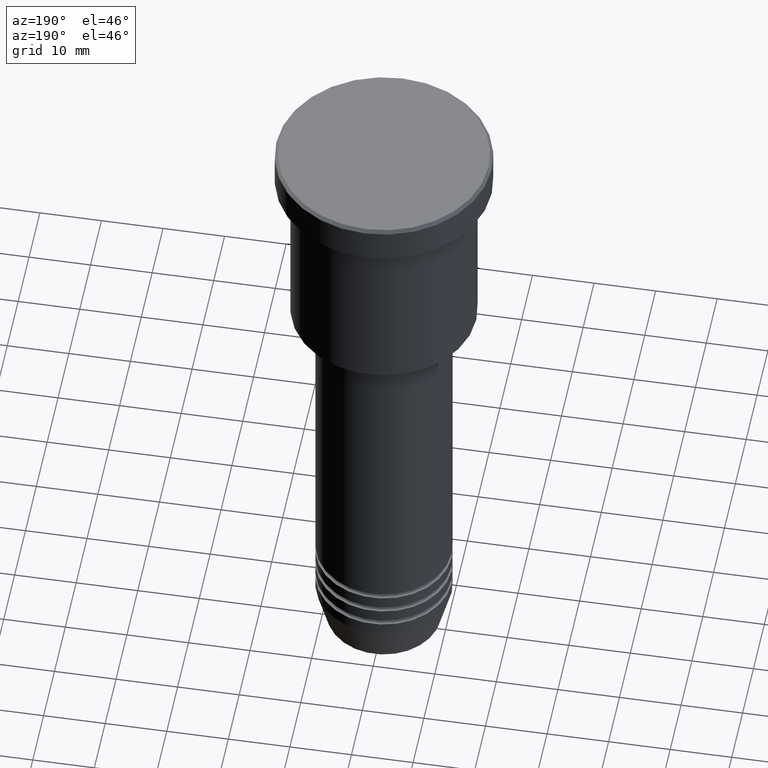
[diagram: clean part render]
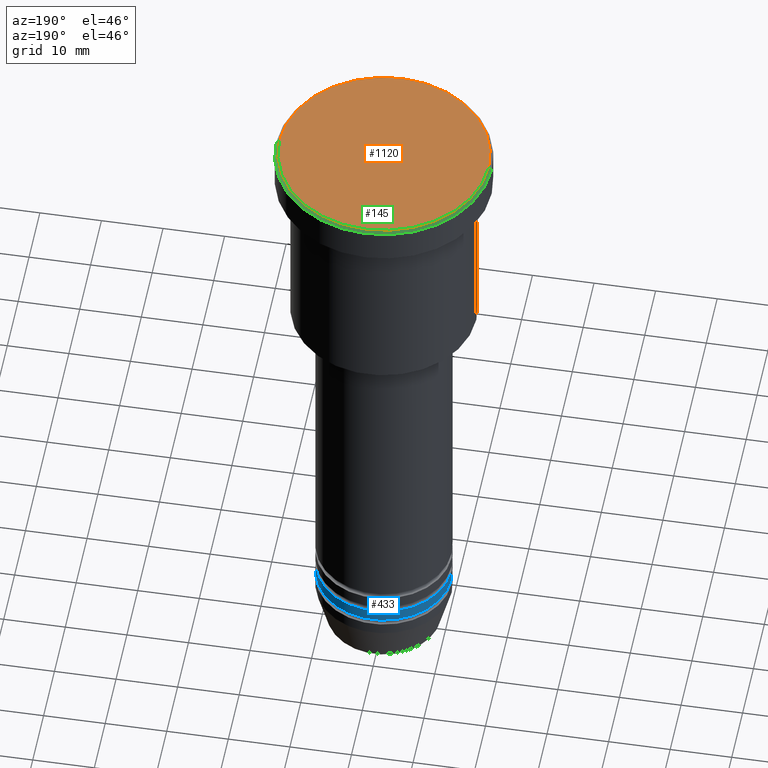
[diagram: same view with three faces highlighted in distinct colors, each labeled with its STEP entity id]
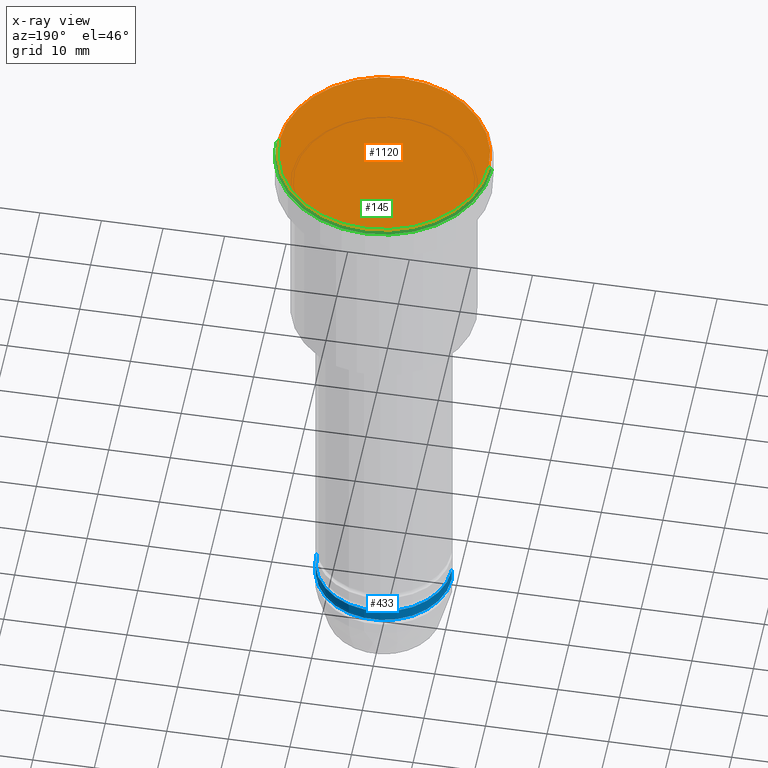
[diagram: x-ray of the same camera — body ghosted, the three highlighted faces saturated]
A machine part, auxiliary view with three faces highlighted in distinct colors.
The next image is the same camera in x-ray (body ghosted, the three faces saturated) — at least one of them is partly hidden behind the body in this view.
Their STEP definitions:

[orange] entity #1120 — the highlighted planar face has unit normal (0, -0, 1).
#15 = FACE_OUTER_BOUND ( 'NONE', #724, .T. ) ;
#146 = VERTEX_POINT ( 'NONE', #750 ) ;
#155 = DIRECTION ( 'NONE',  ( 0.000000000000000000, -0.000000000000000000, 1.000000000000000000 ) ) ;
#221 = DIRECTION ( 'NONE',  ( -0.000000000000000000, -0.000000000000000000, 1.000000000000000000 ) ) ;
#224 = DIRECTION ( 'NONE',  ( 1.000000000000000000, 0.000000000000000000, 0.000000000000000000 ) ) ;
#251 = CARTESIAN_POINT ( 'NONE',  ( 16.99999999999998579, 2.112515728529183278E-15, 0.000000000000000000 ) ) ;
#406 = PLANE ( 'NONE',  #876 ) ;
#441 = AXIS2_PLACEMENT_3D ( 'NONE', #1147, #681, #224 ) ;
#669 = DIRECTION ( 'NONE',  ( 1.000000000000000000, 0.000000000000000000, 0.000000000000000000 ) ) ;
#681 = DIRECTION ( 'NONE',  ( -0.000000000000000000, -0.000000000000000000, 1.000000000000000000 ) ) ;
#721 = EDGE_CURVE ( 'NONE', #882, #146, #966, .T. ) ;
#724 = EDGE_LOOP ( 'NONE', ( #867, #841 ) ) ;
#750 = CARTESIAN_POINT ( 'NONE',  ( -16.99999999999998579, 0.000000000000000000, 0.000000000000000000 ) ) ;
#776 = AXIS2_PLACEMENT_3D ( 'NONE', #781, #221, #958 ) ;
#781 = CARTESIAN_POINT ( 'NONE',  ( 0.000000000000000000, 0.000000000000000000, 0.000000000000000000 ) ) ;
#795 = CIRCLE ( 'NONE', #776, 16.99999999999998579 ) ;
#841 = ORIENTED_EDGE ( 'NONE', *, *, #721, .T. ) ;
#867 = ORIENTED_EDGE ( 'NONE', *, *, #1178, .T. ) ;
#876 = AXIS2_PLACEMENT_3D ( 'NONE', #1126, #155, #669 ) ;
#882 = VERTEX_POINT ( 'NONE', #251 ) ;
#958 = DIRECTION ( 'NONE',  ( 1.000000000000000000, 0.000000000000000000, 0.000000000000000000 ) ) ;
#966 = CIRCLE ( 'NONE', #441, 16.99999999999998579 ) ;
#1120 = ADVANCED_FACE ( 'NONE', ( #15 ), #406, .T. ) ;
#1126 = CARTESIAN_POINT ( 'NONE',  ( 0.000000000000000000, 0.000000000000000000, 0.000000000000000000 ) ) ;
#1147 = CARTESIAN_POINT ( 'NONE',  ( 0.000000000000000000, 0.000000000000000000, 0.000000000000000000 ) ) ;
#1178 = EDGE_CURVE ( 'NONE', #146, #882, #795, .T. ) ;

[blue] entity #433 — the highlighted cylindrical surface (partial cylindrical patch) has radius 11 mm, axis along (-0, -0, 1).
#4 = EDGE_CURVE ( 'NONE', #897, #821, #175, .T. ) ;
#37 = CARTESIAN_POINT ( 'NONE',  ( 0.000000000000000000, 0.000000000000000000, -93.99999999999998579 ) ) ;
#74 = CYLINDRICAL_SURFACE ( 'NONE', #956, 11.00000000000000000 ) ;
#75 = CARTESIAN_POINT ( 'NONE',  ( -11.00000000000000000, 1.347111479062088405E-15, 0.000000000000000000 ) ) ;
#94 = ORIENTED_EDGE ( 'NONE', *, *, #757, .F. ) ;
#100 = DIRECTION ( 'NONE',  ( -0.000000000000000000, -0.000000000000000000, 1.000000000000000000 ) ) ;
#139 = ORIENTED_EDGE ( 'NONE', *, *, #904, .F. ) ;
#175 = LINE ( 'NONE', #75, #550 ) ;
#204 = EDGE_LOOP ( 'NONE', ( #1128, #1153, #94, #139 ) ) ;
#266 = CARTESIAN_POINT ( 'NONE',  ( 0.000000000000000000, 0.000000000000000000, 0.000000000000000000 ) ) ;
#270 = CARTESIAN_POINT ( 'NONE',  ( 11.00000000000000000, 0.000000000000000000, 0.000000000000000000 ) ) ;
#277 = LINE ( 'NONE', #270, #564 ) ;
#286 = CARTESIAN_POINT ( 'NONE',  ( 11.00000000000000000, 0.000000000000000000, -95.99999999999997158 ) ) ;
#300 = CARTESIAN_POINT ( 'NONE',  ( 11.00000000000000000, 0.000000000000000000, -93.99999999999998579 ) ) ;
#336 = DIRECTION ( 'NONE',  ( 1.000000000000000000, 0.000000000000000000, 0.000000000000000000 ) ) ;
#368 = AXIS2_PLACEMENT_3D ( 'NONE', #777, #402, #1051 ) ;
#402 = DIRECTION ( 'NONE',  ( -0.000000000000000000, -0.000000000000000000, 1.000000000000000000 ) ) ;
#433 = ADVANCED_FACE ( 'NONE', ( #726 ), #74, .T. ) ;
#440 = DIRECTION ( 'NONE',  ( 1.000000000000000000, 0.000000000000000000, 0.000000000000000000 ) ) ;
#510 = DIRECTION ( 'NONE',  ( -0.000000000000000000, -0.000000000000000000, 1.000000000000000000 ) ) ;
#548 = DIRECTION ( 'NONE',  ( -0.000000000000000000, -0.000000000000000000, 1.000000000000000000 ) ) ;
#550 = VECTOR ( 'NONE', #100, 1000.000000000000000 ) ;
#564 = VECTOR ( 'NONE', #548, 1000.000000000000000 ) ;
#597 = CIRCLE ( 'NONE', #825, 11.00000000000000000 ) ;
#688 = CARTESIAN_POINT ( 'NONE',  ( -11.00000000000000000, 1.347111479062088405E-15, -93.99999999999998579 ) ) ;
#726 = FACE_OUTER_BOUND ( 'NONE', #204, .T. ) ;
#749 = EDGE_CURVE ( 'NONE', #1071, #897, #763, .T. ) ;
#757 = EDGE_CURVE ( 'NONE', #1000, #821, #597, .T. ) ;
#763 = CIRCLE ( 'NONE', #368, 11.00000000000000000 ) ;
#777 = CARTESIAN_POINT ( 'NONE',  ( 0.000000000000000000, 0.000000000000000000, -95.99999999999997158 ) ) ;
#821 = VERTEX_POINT ( 'NONE', #688 ) ;
#825 = AXIS2_PLACEMENT_3D ( 'NONE', #37, #510, #336 ) ;
#897 = VERTEX_POINT ( 'NONE', #907 ) ;
#900 = DIRECTION ( 'NONE',  ( -0.000000000000000000, -0.000000000000000000, 1.000000000000000000 ) ) ;
#904 = EDGE_CURVE ( 'NONE', #1071, #1000, #277, .T. ) ;
#907 = CARTESIAN_POINT ( 'NONE',  ( -11.00000000000000000, 1.347111479062088405E-15, -95.99999999999997158 ) ) ;
#956 = AXIS2_PLACEMENT_3D ( 'NONE', #266, #900, #440 ) ;
#1000 = VERTEX_POINT ( 'NONE', #300 ) ;
#1051 = DIRECTION ( 'NONE',  ( 1.000000000000000000, 0.000000000000000000, 0.000000000000000000 ) ) ;
#1071 = VERTEX_POINT ( 'NONE', #286 ) ;
#1128 = ORIENTED_EDGE ( 'NONE', *, *, #749, .T. ) ;
#1153 = ORIENTED_EDGE ( 'NONE', *, *, #4, .T. ) ;

[green] entity #145 — the highlighted conical surface has half-angle 45 deg.
#17 = DIRECTION ( 'NONE',  ( -1.000000000000000000, 0.000000000000000000, 0.000000000000000000 ) ) ;
#57 = CARTESIAN_POINT ( 'NONE',  ( -16.99999999999998579, 0.000000000000000000, 0.000000000000000000 ) ) ;
#113 = CARTESIAN_POINT ( 'NONE',  ( 0.000000000000000000, 0.000000000000000000, 0.000000000000000000 ) ) ;
#135 = LINE ( 'NONE', #57, #1053 ) ;
#143 = CARTESIAN_POINT ( 'NONE',  ( 17.50000000000000000, 0.000000000000000000, -0.5000000000000280886 ) ) ;
#145 = ADVANCED_FACE ( 'NONE', ( #938 ), #1131, .T. ) ;
#146 = VERTEX_POINT ( 'NONE', #750 ) ;
#148 = DIRECTION ( 'NONE',  ( 0.7071067811865378028, 8.659560562354814529E-17, -0.7071067811865573427 ) ) ;
#223 = EDGE_CURVE ( 'NONE', #465, #272, #771, .T. ) ;
#224 = DIRECTION ( 'NONE',  ( 1.000000000000000000, 0.000000000000000000, 0.000000000000000000 ) ) ;
#235 = DIRECTION ( 'NONE',  ( -0.7071067811865378028, 0.000000000000000000, -0.7071067811865573427 ) ) ;
#238 = CARTESIAN_POINT ( 'NONE',  ( 16.99999999999998579, 2.081899558550499096E-15, 0.000000000000000000 ) ) ;
#251 = CARTESIAN_POINT ( 'NONE',  ( 16.99999999999998579, 2.112515728529183278E-15, 0.000000000000000000 ) ) ;
#272 = VERTEX_POINT ( 'NONE', #143 ) ;
#293 = DIRECTION ( 'NONE',  ( 1.000000000000000000, 0.000000000000000000, 0.000000000000000000 ) ) ;
#441 = AXIS2_PLACEMENT_3D ( 'NONE', #1147, #681, #224 ) ;
#465 = VERTEX_POINT ( 'NONE', #1165 ) ;
#502 = LINE ( 'NONE', #238, #1132 ) ;
#619 = AXIS2_PLACEMENT_3D ( 'NONE', #758, #1124, #293 ) ;
#637 = ORIENTED_EDGE ( 'NONE', *, *, #1158, .T. ) ;
#639 = AXIS2_PLACEMENT_3D ( 'NONE', #113, #1010, #17 ) ;
#681 = DIRECTION ( 'NONE',  ( -0.000000000000000000, -0.000000000000000000, 1.000000000000000000 ) ) ;
#721 = EDGE_CURVE ( 'NONE', #882, #146, #966, .T. ) ;
#723 = ORIENTED_EDGE ( 'NONE', *, *, #721, .F. ) ;
#734 = ORIENTED_EDGE ( 'NONE', *, *, #764, .F. ) ;
#750 = CARTESIAN_POINT ( 'NONE',  ( -16.99999999999998579, 0.000000000000000000, 0.000000000000000000 ) ) ;
#758 = CARTESIAN_POINT ( 'NONE',  ( 0.000000000000000000, 0.000000000000000000, -0.5000000000000280886 ) ) ;
#764 = EDGE_CURVE ( 'NONE', #146, #465, #135, .T. ) ;
#771 = CIRCLE ( 'NONE', #619, 17.50000000000000000 ) ;
#882 = VERTEX_POINT ( 'NONE', #251 ) ;
#913 = ORIENTED_EDGE ( 'NONE', *, *, #223, .F. ) ;
#938 = FACE_OUTER_BOUND ( 'NONE', #1094, .T. ) ;
#966 = CIRCLE ( 'NONE', #441, 16.99999999999998579 ) ;
#1010 = DIRECTION ( 'NONE',  ( 0.000000000000000000, 0.000000000000000000, -1.000000000000000000 ) ) ;
#1053 = VECTOR ( 'NONE', #235, 1000.000000000000000 ) ;
#1094 = EDGE_LOOP ( 'NONE', ( #723, #637, #913, #734 ) ) ;
#1124 = DIRECTION ( 'NONE',  ( 0.000000000000000000, 0.000000000000000000, -1.000000000000000000 ) ) ;
#1131 = CONICAL_SURFACE ( 'NONE', #639, 16.99999999999998579, 0.7853981633974346233 ) ;
#1132 = VECTOR ( 'NONE', #148, 1000.000000000000000 ) ;
#1147 = CARTESIAN_POINT ( 'NONE',  ( 0.000000000000000000, 0.000000000000000000, 0.000000000000000000 ) ) ;
#1158 = EDGE_CURVE ( 'NONE', #882, #272, #502, .T. ) ;
#1165 = CARTESIAN_POINT ( 'NONE',  ( -17.50000000000000000, 2.143131898507868248E-15, -0.5000000000000280886 ) ) ;